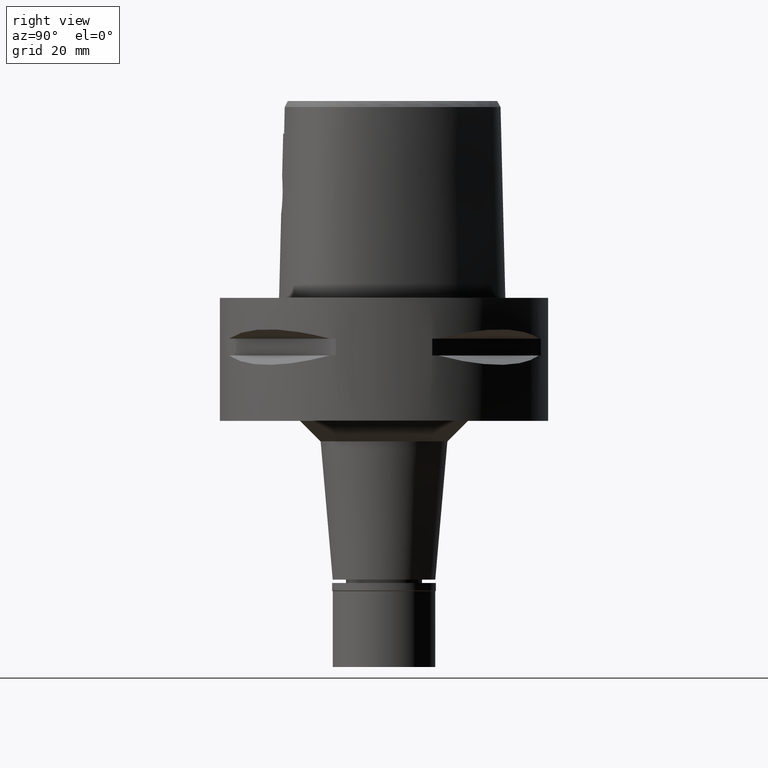
[diagram: clean part render]
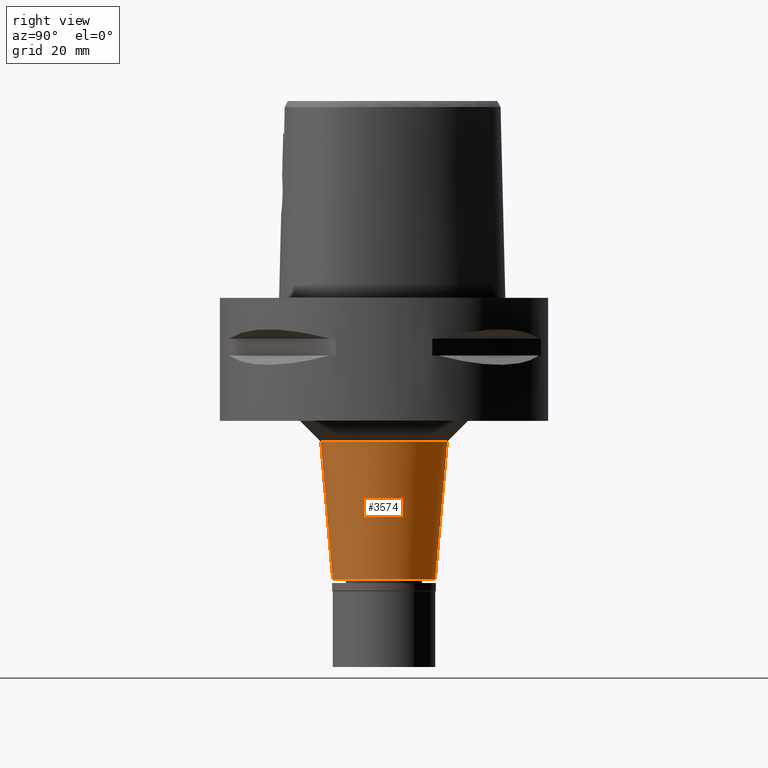
[diagram: same view with one face highlighted and labeled with its STEP entity id]
A machine part, right view. The second image highlights one B-rep face of the part: STEP entity #3574.
In plain terms, the highlighted conical surface has half-angle 5 deg.
Its self-contained STEP definition (entity closure, byte-faithful):
#37 = ORIENTED_EDGE ( 'NONE', *, *, #1176, .T. ) ;
#101 = ORIENTED_EDGE ( 'NONE', *, *, #4350, .T. ) ;
#225 = VERTEX_POINT ( 'NONE', #2569 ) ;
#537 = LINE ( 'NONE', #3287, #4369 ) ;
#934 = CIRCLE ( 'NONE', #2863, 12.50000000000000000 ) ;
#1136 = AXIS2_PLACEMENT_3D ( 'NONE', #2833, #4436, #4874 ) ;
#1176 = EDGE_CURVE ( 'NONE', #4682, #4254, #934, .T. ) ;
#1486 = FACE_OUTER_BOUND ( 'NONE', #4240, .T. ) ;
#1665 = DIRECTION ( 'NONE',  ( 0.0000000000000000000, 0.0000000000000000000, 1.000000000000000000 ) ) ;
#1702 = CARTESIAN_POINT ( 'NONE',  ( 0.0000000000000000000, -12.50000000000000000, -68.70000000000000284 ) ) ;
#1986 = DIRECTION ( 'NONE',  ( 0.0000000000000000000, -1.000000000000000000, 0.0000000000000000000 ) ) ;
#2295 = CARTESIAN_POINT ( 'NONE',  ( 0.0000000000000000000, 12.50000000000000000, -68.70000000000000284 ) ) ;
#2328 = DIRECTION ( 'NONE',  ( 0.0000000000000000000, 0.08715574274761432594, -0.9961946980917494310 ) ) ;
#2569 = CARTESIAN_POINT ( 'NONE',  ( 0.0000000000000000000, 15.44836796082000063, -35.00000000000000000 ) ) ;
#2643 = VERTEX_POINT ( 'NONE', #3740 ) ;
#2833 = CARTESIAN_POINT ( 'NONE',  ( 0.0000000000000000000, 0.0000000000000000000, -35.00000000000000000 ) ) ;
#2849 = ORIENTED_EDGE ( 'NONE', *, *, #4538, .F. ) ;
#2863 = AXIS2_PLACEMENT_3D ( 'NONE', #4741, #1665, #1986 ) ;
#2877 = AXIS2_PLACEMENT_3D ( 'NONE', #3001, #3081, #4659 ) ;
#2945 = ORIENTED_EDGE ( 'NONE', *, *, #3193, .F. ) ;
#3001 = CARTESIAN_POINT ( 'NONE',  ( 0.0000000000000000000, 0.0000000000000000000, -51.85000000000000142 ) ) ;
#3081 = DIRECTION ( 'NONE',  ( 0.0000000000000000000, 0.0000000000000000000, 1.000000000000000000 ) ) ;
#3193 = EDGE_CURVE ( 'NONE', #225, #4254, #537, .T. ) ;
#3287 = CARTESIAN_POINT ( 'NONE',  ( 0.0000000000000000000, 15.44836796082000063, -35.00000000000000000 ) ) ;
#3574 = ADVANCED_FACE ( 'NONE', ( #1486 ), #4707, .T. ) ;
#3698 = DIRECTION ( 'NONE',  ( 0.0000000000000000000, -0.08715574274761432594, -0.9961946980917494310 ) ) ;
#3740 = CARTESIAN_POINT ( 'NONE',  ( 0.0000000000000000000, -15.44836796082000063, -35.00000000000000000 ) ) ;
#4240 = EDGE_LOOP ( 'NONE', ( #2849, #101, #37, #2945 ) ) ;
#4254 = VERTEX_POINT ( 'NONE', #2295 ) ;
#4350 = EDGE_CURVE ( 'NONE', #2643, #4682, #4755, .T. ) ;
#4369 = VECTOR ( 'NONE', #3698, 1000.000000000000114 ) ;
#4377 = CIRCLE ( 'NONE', #1136, 15.44836796082000063 ) ;
#4436 = DIRECTION ( 'NONE',  ( 0.0000000000000000000, 0.0000000000000000000, 1.000000000000000000 ) ) ;
#4454 = VECTOR ( 'NONE', #2328, 1000.000000000000114 ) ;
#4538 = EDGE_CURVE ( 'NONE', #2643, #225, #4377, .T. ) ;
#4659 = DIRECTION ( 'NONE',  ( 0.0000000000000000000, 1.000000000000000000, 0.0000000000000000000 ) ) ;
#4682 = VERTEX_POINT ( 'NONE', #1702 ) ;
#4707 = CONICAL_SURFACE ( 'NONE', #2877, 13.97418398041000032, 0.08726646259969973729 ) ;
#4741 = CARTESIAN_POINT ( 'NONE',  ( 0.0000000000000000000, 0.0000000000000000000, -68.70000000000000284 ) ) ;
#4755 = LINE ( 'NONE', #4781, #4454 ) ;
#4781 = CARTESIAN_POINT ( 'NONE',  ( 0.0000000000000000000, -15.44836796082000063, -35.00000000000000000 ) ) ;
#4874 = DIRECTION ( 'NONE',  ( 0.0000000000000000000, -1.000000000000000000, 0.0000000000000000000 ) ) ;